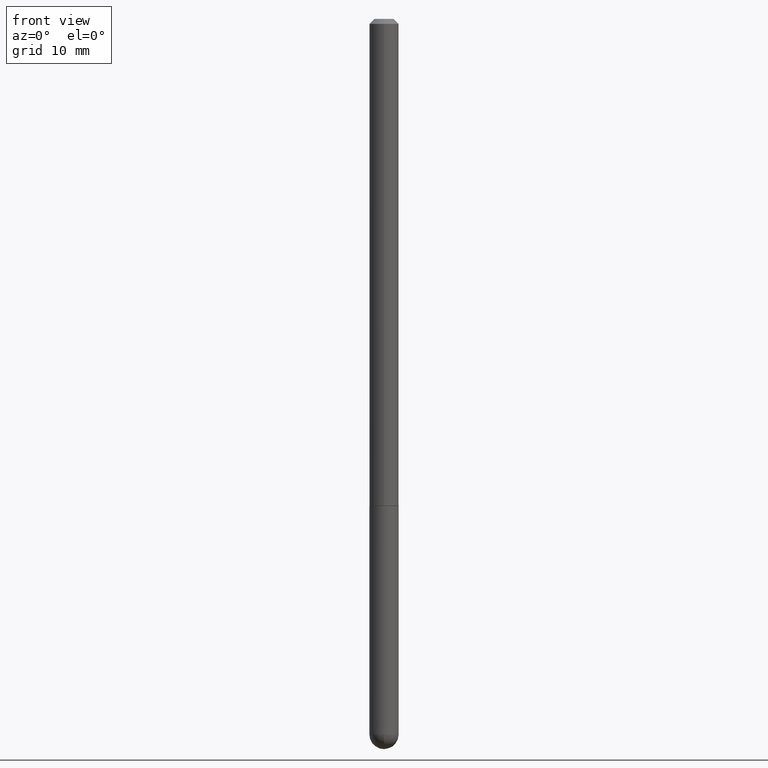
[diagram: clean part render]
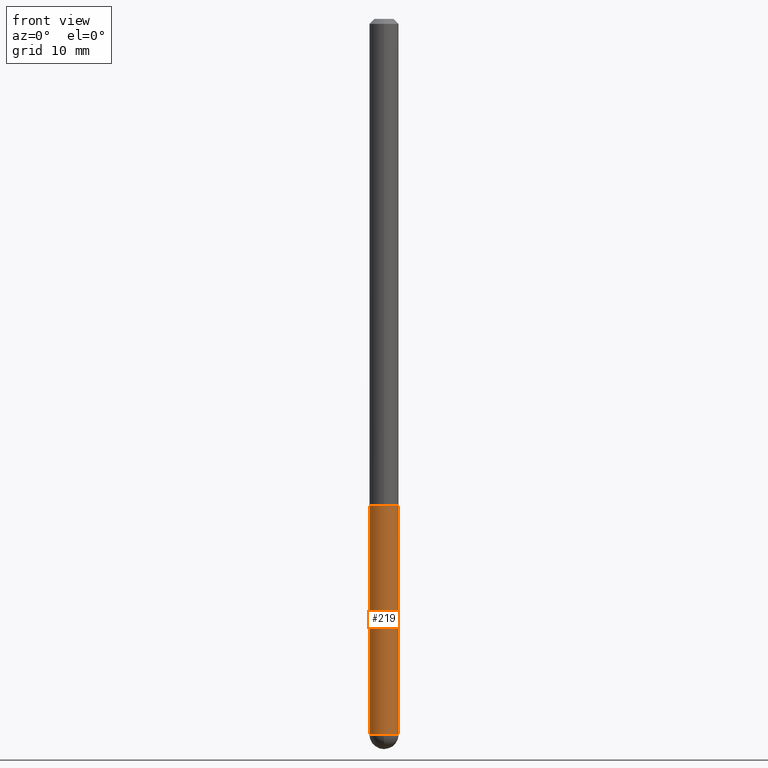
[diagram: same view with one face highlighted and labeled with its STEP entity id]
A machine part, front view. The second image highlights one B-rep face of the part: STEP entity #219.
In plain terms, the highlighted cylindrical surface (edge-blend (fillet) strip) has radius 1.4999 mm, axis along (-0, 0, 1).
Its self-contained STEP definition (entity closure, byte-faithful):
#6 = LINE ( 'NONE', #59, #128 ) ;
#8 = VERTEX_POINT ( 'NONE', #226 ) ;
#19 = CARTESIAN_POINT ( 'NONE',  ( 4.813905344975440714E-29, -6.872981015512730918E-15, -1.968499999999999694 ) ) ;
#27 = VERTEX_POINT ( 'NONE', #168 ) ;
#31 = ORIENTED_EDGE ( 'NONE', *, *, #244, .T. ) ;
#34 = DIRECTION ( 'NONE',  ( 1.000000000000000000, -6.982962677686270655E-15, 0.000000000000000000 ) ) ;
#36 = CARTESIAN_POINT ( 'NONE',  ( 0.000000000000000000, 0.000000000000000000, 0.000000000000000000 ) ) ;
#37 = DIRECTION ( 'NONE',  ( -2.445468806185136877E-29, 3.491481338843145188E-15, 1.000000000000000000 ) ) ;
#38 = DIRECTION ( 'NONE',  ( 1.000000000000000000, -6.982962677686266711E-15, 4.876176775795935793E-29 ) ) ;
#39 = EDGE_CURVE ( 'NONE', #52, #8, #6, .T. ) ;
#42 = CARTESIAN_POINT ( 'NONE',  ( 0.05905000000000001914, -8.900571516012416899E-15, -2.893749999999999822 ) ) ;
#52 = VERTEX_POINT ( 'NONE', #42 ) ;
#59 = CARTESIAN_POINT ( 'NONE',  ( 0.05905000000000001914, -4.123439461173741806E-16, 2.879382386107500921E-30 ) ) ;
#60 = CIRCLE ( 'NONE', #125, 0.05905000000000001914 ) ;
#65 = CARTESIAN_POINT ( 'NONE',  ( 7.076575357898237682E-29, -1.010347412427735067E-14, -2.893749999999999822 ) ) ;
#71 = ORIENTED_EDGE ( 'NONE', *, *, #344, .T. ) ;
#84 = CARTESIAN_POINT ( 'NONE',  ( -4.195754854662709114E-16, -0.05905000000001047605, -2.893749999999999822 ) ) ;
#88 = EDGE_LOOP ( 'NONE', ( #408, #31, #71, #336, #277 ) ) ;
#107 = DIRECTION ( 'NONE',  ( -2.445468806185136597E-29, 3.491481338843145583E-15, 1.000000000000000000 ) ) ;
#125 = AXIS2_PLACEMENT_3D ( 'NONE', #317, #345, #315 ) ;
#128 = VECTOR ( 'NONE', #37, 39.37007874015748143 ) ;
#145 = DIRECTION ( 'NONE',  ( 1.000000000000000000, -6.982962677686270655E-15, 0.000000000000000000 ) ) ;
#162 = DIRECTION ( 'NONE',  ( -2.445468806185136597E-29, 3.491481338843145583E-15, 1.000000000000000000 ) ) ;
#168 = CARTESIAN_POINT ( 'NONE',  ( -0.05905000000000001914, -8.068652084428701697E-15, -1.968499999999999694 ) ) ;
#171 = VECTOR ( 'NONE', #284, 39.37007874015748143 ) ;
#172 = FACE_OUTER_BOUND ( 'NONE', #88, .T. ) ;
#183 = EDGE_CURVE ( 'NONE', #27, #8, #228, .T. ) ;
#202 = VERTEX_POINT ( 'NONE', #84 ) ;
#208 = CYLINDRICAL_SURFACE ( 'NONE', #253, 0.05905000000000001914 ) ;
#219 = ADVANCED_FACE ( 'NONE', ( #172 ), #208, .T. ) ;
#226 = CARTESIAN_POINT ( 'NONE',  ( 0.05905000000000001914, -7.285324961630105839E-15, -1.968499999999999694 ) ) ;
#228 = CIRCLE ( 'NONE', #402, 0.05905000000000001914 ) ;
#244 = EDGE_CURVE ( 'NONE', #258, #202, #373, .T. ) ;
#246 = AXIS2_PLACEMENT_3D ( 'NONE', #65, #162, #34 ) ;
#251 = CARTESIAN_POINT ( 'NONE',  ( -0.05905000000000001914, -8.068652084428701697E-15, -2.893749999999999822 ) ) ;
#253 = AXIS2_PLACEMENT_3D ( 'NONE', #36, #316, #38 ) ;
#258 = VERTEX_POINT ( 'NONE', #251 ) ;
#277 = ORIENTED_EDGE ( 'NONE', *, *, #183, .F. ) ;
#282 = EDGE_CURVE ( 'NONE', #258, #27, #321, .T. ) ;
#284 = DIRECTION ( 'NONE',  ( -2.445468806185136877E-29, 3.491481338843145188E-15, 1.000000000000000000 ) ) ;
#315 = DIRECTION ( 'NONE',  ( 1.000000000000000000, -6.982962677686270655E-15, 0.000000000000000000 ) ) ;
#316 = DIRECTION ( 'NONE',  ( -2.445468806185136597E-29, 3.491481338843145583E-15, 1.000000000000000000 ) ) ;
#317 = CARTESIAN_POINT ( 'NONE',  ( 7.076575357898237682E-29, -1.010347412427735067E-14, -2.893749999999999822 ) ) ;
#321 = LINE ( 'NONE', #349, #171 ) ;
#336 = ORIENTED_EDGE ( 'NONE', *, *, #39, .T. ) ;
#344 = EDGE_CURVE ( 'NONE', #202, #52, #60, .T. ) ;
#345 = DIRECTION ( 'NONE',  ( -2.445468806185136597E-29, 3.491481338843145583E-15, 1.000000000000000000 ) ) ;
#349 = CARTESIAN_POINT ( 'NONE',  ( -0.05905000000000001914, 4.195754854663392958E-16, -2.904631170795522943E-30 ) ) ;
#373 = CIRCLE ( 'NONE', #246, 0.05905000000000001914 ) ;
#402 = AXIS2_PLACEMENT_3D ( 'NONE', #19, #107, #145 ) ;
#408 = ORIENTED_EDGE ( 'NONE', *, *, #282, .F. ) ;